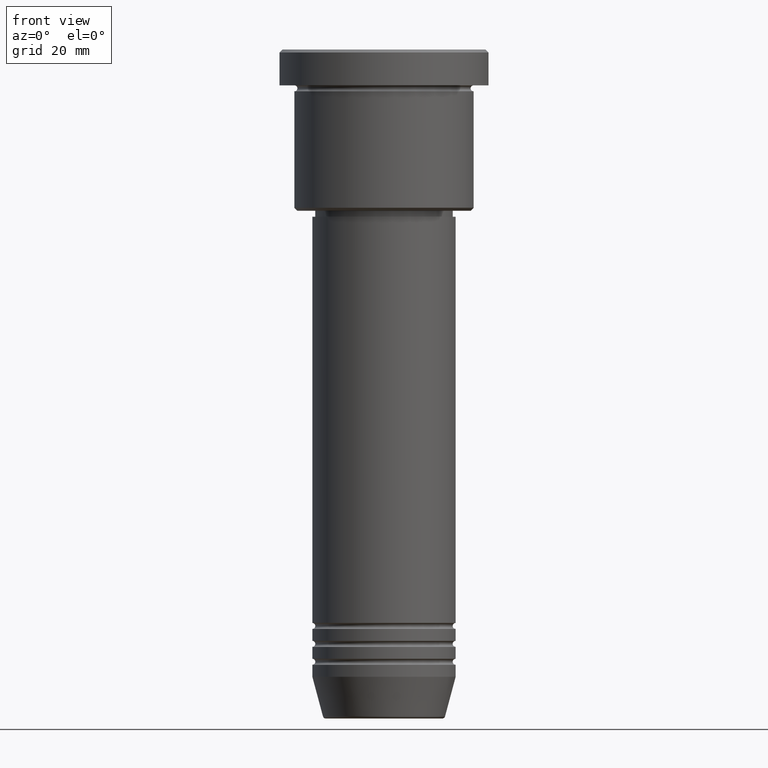
[diagram: clean part render]
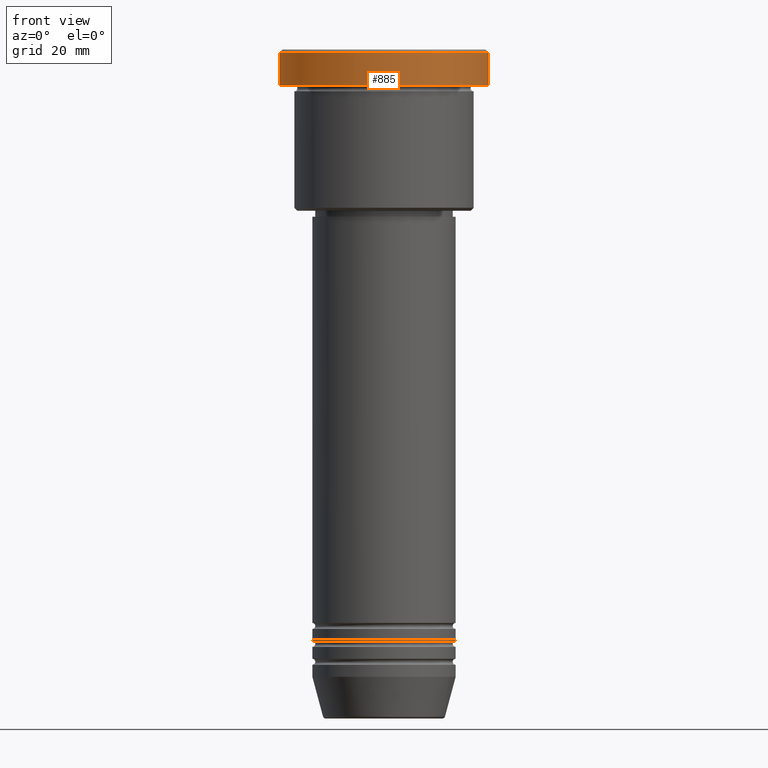
[diagram: same view with one face highlighted and labeled with its STEP entity id]
A machine part, front view. The second image highlights one B-rep face of the part: STEP entity #885.
In plain terms, the highlighted cylindrical surface (partial cylindrical patch) has radius 17.5 mm, axis along (-0, -0, 1).
Its self-contained STEP definition (entity closure, byte-faithful):
#27 = DIRECTION ( 'NONE',  ( -0.000000000000000000, -0.000000000000000000, 1.000000000000000000 ) ) ;
#42 = DIRECTION ( 'NONE',  ( -0.000000000000000000, -0.000000000000000000, 1.000000000000000000 ) ) ;
#72 = DIRECTION ( 'NONE',  ( 1.000000000000000000, 0.000000000000000000, 0.000000000000000000 ) ) ;
#95 = CARTESIAN_POINT ( 'NONE',  ( -17.50000000000000000, 2.143131898507868248E-15, 0.000000000000000000 ) ) ;
#121 = ORIENTED_EDGE ( 'NONE', *, *, #1088, .T. ) ;
#141 = VERTEX_POINT ( 'NONE', #631 ) ;
#154 = VECTOR ( 'NONE', #727, 1000.000000000000000 ) ;
#162 = CARTESIAN_POINT ( 'NONE',  ( 17.50000000000000000, 0.000000000000000000, -5.999999999999995559 ) ) ;
#243 = DIRECTION ( 'NONE',  ( -0.000000000000000000, -0.000000000000000000, 1.000000000000000000 ) ) ;
#274 = DIRECTION ( 'NONE',  ( 1.000000000000000000, 0.000000000000000000, 0.000000000000000000 ) ) ;
#300 = ORIENTED_EDGE ( 'NONE', *, *, #988, .T. ) ;
#304 = AXIS2_PLACEMENT_3D ( 'NONE', #634, #243, #72 ) ;
#306 = EDGE_CURVE ( 'NONE', #1120, #141, #1105, .T. ) ;
#319 = FACE_OUTER_BOUND ( 'NONE', #947, .T. ) ;
#474 = DIRECTION ( 'NONE',  ( 0.000000000000000000, 0.000000000000000000, -1.000000000000000000 ) ) ;
#519 = VERTEX_POINT ( 'NONE', #162 ) ;
#546 = AXIS2_PLACEMENT_3D ( 'NONE', #918, #474, #274 ) ;
#570 = ORIENTED_EDGE ( 'NONE', *, *, #1019, .T. ) ;
#593 = CARTESIAN_POINT ( 'NONE',  ( 17.50000000000000000, 0.000000000000000000, -0.5000000000000280886 ) ) ;
#631 = CARTESIAN_POINT ( 'NONE',  ( -17.50000000000000000, 2.143131898507868248E-15, -0.5000000000000280886 ) ) ;
#634 = CARTESIAN_POINT ( 'NONE',  ( 0.000000000000000000, 0.000000000000000000, -5.999999999999995559 ) ) ;
#643 = CIRCLE ( 'NONE', #304, 17.50000000000000000 ) ;
#660 = ORIENTED_EDGE ( 'NONE', *, *, #306, .F. ) ;
#703 = CYLINDRICAL_SURFACE ( 'NONE', #868, 17.50000000000000000 ) ;
#727 = DIRECTION ( 'NONE',  ( -0.000000000000000000, -0.000000000000000000, 1.000000000000000000 ) ) ;
#835 = VECTOR ( 'NONE', #27, 1000.000000000000000 ) ;
#861 = CARTESIAN_POINT ( 'NONE',  ( 0.000000000000000000, 0.000000000000000000, 0.000000000000000000 ) ) ;
#868 = AXIS2_PLACEMENT_3D ( 'NONE', #861, #42, #1060 ) ;
#882 = LINE ( 'NONE', #1073, #154 ) ;
#885 = ADVANCED_FACE ( 'NONE', ( #319 ), #703, .T. ) ;
#887 = VERTEX_POINT ( 'NONE', #593 ) ;
#918 = CARTESIAN_POINT ( 'NONE',  ( 0.000000000000000000, 0.000000000000000000, -0.5000000000000280886 ) ) ;
#947 = EDGE_LOOP ( 'NONE', ( #660, #300, #570, #121 ) ) ;
#980 = CIRCLE ( 'NONE', #546, 17.50000000000000000 ) ;
#988 = EDGE_CURVE ( 'NONE', #1120, #519, #643, .T. ) ;
#1019 = EDGE_CURVE ( 'NONE', #519, #887, #882, .T. ) ;
#1060 = DIRECTION ( 'NONE',  ( 1.000000000000000000, 0.000000000000000000, 0.000000000000000000 ) ) ;
#1073 = CARTESIAN_POINT ( 'NONE',  ( 17.50000000000000000, 0.000000000000000000, 0.000000000000000000 ) ) ;
#1088 = EDGE_CURVE ( 'NONE', #887, #141, #980, .T. ) ;
#1105 = LINE ( 'NONE', #95, #835 ) ;
#1110 = CARTESIAN_POINT ( 'NONE',  ( -17.50000000000000000, 2.143131898507868248E-15, -5.999999999999995559 ) ) ;
#1120 = VERTEX_POINT ( 'NONE', #1110 ) ;